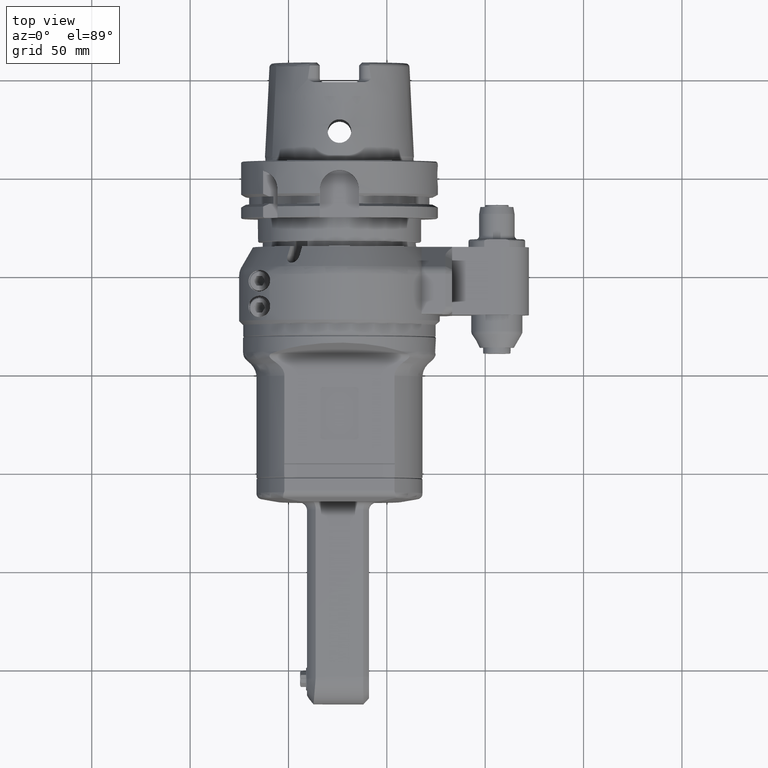
[diagram: clean part render]
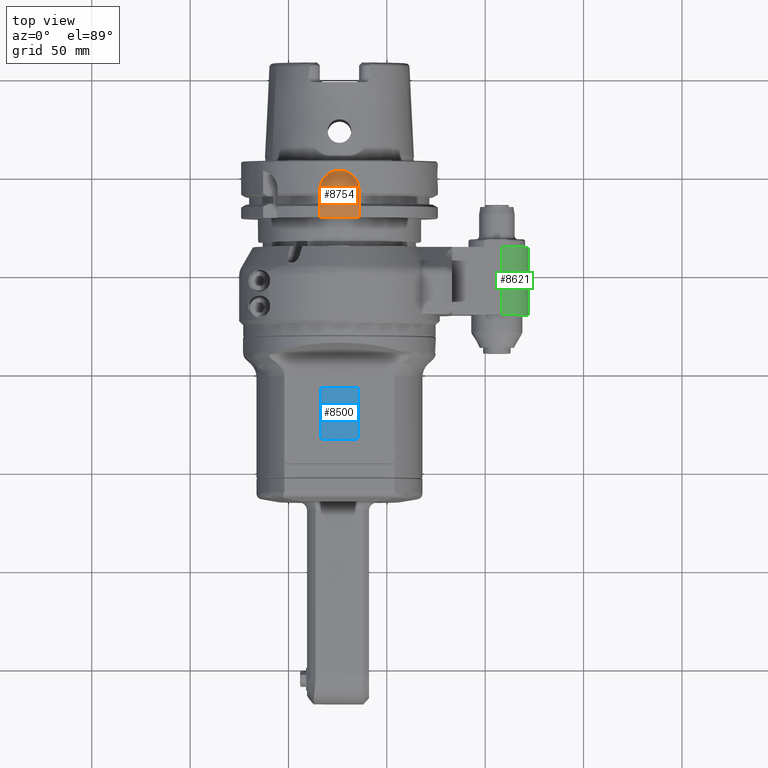
[diagram: same view with three faces highlighted in distinct colors, each labeled with its STEP entity id]
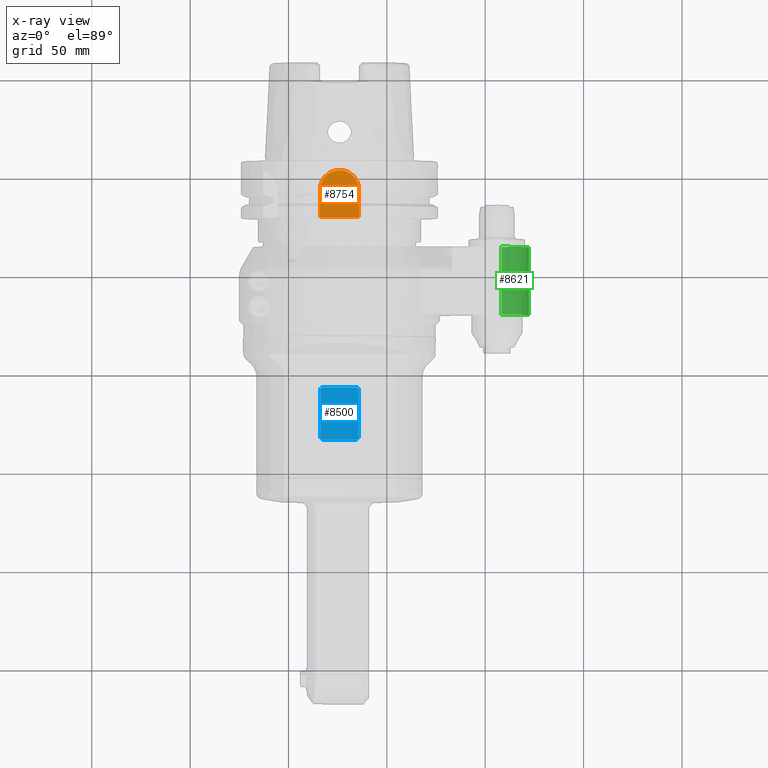
[diagram: x-ray of the same camera — body ghosted, the three highlighted faces saturated]
A machine part, top view with three faces highlighted in distinct colors.
The next image is the same camera in x-ray (body ghosted, the three faces saturated) — at least one of them is partly hidden behind the body in this view.
Their STEP definitions:

[orange] entity #8754 — the highlighted planar face has unit normal (0, 0, -1).
#508=PLANE('',#9613);
#952=FACE_OUTER_BOUND('',#1513,.T.);
#1513=EDGE_LOOP('',(#7532,#7533,#7534,#7535));
#2306=LINE('',#56442,#2937);
#2308=LINE('',#56449,#2939);
#2309=LINE('',#56450,#2940);
#2937=VECTOR('',#11660,14.);
#2939=VECTOR('',#11668,14.);
#2940=VECTOR('',#11669,20.);
#3379=CIRCLE('',#9612,10.);
#4117=VERTEX_POINT('',#56423);
#4123=VERTEX_POINT('',#56440);
#4124=VERTEX_POINT('',#56444);
#4125=VERTEX_POINT('',#56448);
#5299=EDGE_CURVE('',#4117,#4123,#2306,.T.);
#5300=EDGE_CURVE('',#4124,#4117,#3379,.T.);
#5302=EDGE_CURVE('',#4125,#4124,#2308,.T.);
#5303=EDGE_CURVE('',#4123,#4125,#2309,.T.);
#7532=ORIENTED_EDGE('',*,*,#5302,.T.);
#7533=ORIENTED_EDGE('',*,*,#5300,.T.);
#7534=ORIENTED_EDGE('',*,*,#5299,.T.);
#7535=ORIENTED_EDGE('',*,*,#5303,.T.);
#8754=ADVANCED_FACE('',(#952),#508,.F.);
#9612=AXIS2_PLACEMENT_3D('',#56445,#11663,#11664);
#9613=AXIS2_PLACEMENT_3D('',#56447,#11666,#11667);
#11660=DIRECTION('',(0.,-1.,-2.9996548615444E-25));
#11663=DIRECTION('center_axis',(0.,0.,1.));
#11664=DIRECTION('ref_axis',(0.,1.,0.));
#11666=DIRECTION('center_axis',(0.,0.,-1.));
#11667=DIRECTION('ref_axis',(0.,-1.,0.));
#11668=DIRECTION('',(0.,1.,2.9996548615444E-25));
#11669=DIRECTION('',(1.,0.,0.));
#56423=CARTESIAN_POINT('',(-10.0000000000041,67.9999999999976,44.0000000000042));
#56440=CARTESIAN_POINT('',(-10.0000000000041,53.9999999999956,43.9999999999992));
#56442=CARTESIAN_POINT('',(-10.0000000000041,67.9999999999976,44.0000000000042));
#56444=CARTESIAN_POINT('',(9.99999999999594,67.9999999999976,44.0000000000042));
#56445=CARTESIAN_POINT('Origin',(-4.060069640028E-12,67.9999999999976,44.0000000000042));
#56447=CARTESIAN_POINT('Origin',(-4.060069640028E-12,33.0999999999956,43.9999999999966));
#56448=CARTESIAN_POINT('',(9.99999999999594,53.9999999999956,43.9999999999992));
#56449=CARTESIAN_POINT('',(9.99999999999594,53.9999999999956,43.9999999999992));
#56450=CARTESIAN_POINT('',(-10.0000000000041,53.9999999999956,43.9999999999992));

[blue] entity #8500 — the highlighted planar face has unit normal (0, -0, 1).
#378=PLANE('',#9174);
#698=FACE_OUTER_BOUND('',#1223,.T.);
#1223=EDGE_LOOP('',(#6260,#6261,#6262,#6263,#6264,#6265,#6266,#6267));
#1977=LINE('',#13535,#2608);
#1980=LINE('',#13546,#2611);
#1981=LINE('',#13550,#2612);
#1982=LINE('',#13552,#2613);
#2608=VECTOR('',#10453,16.5);
#2611=VECTOR('',#10464,16.5);
#2612=VECTOR('',#10467,23.5);
#2613=VECTOR('',#10470,23.5);
#3189=CIRCLE('',#9173,1.5);
#3190=CIRCLE('',#9175,1.5);
#3191=CIRCLE('',#9176,1.5);
#3192=CIRCLE('',#9177,1.5);
#3700=VERTEX_POINT('',#13532);
#3701=VERTEX_POINT('',#13534);
#3702=VERTEX_POINT('',#13538);
#3703=VERTEX_POINT('',#13542);
#3704=VERTEX_POINT('',#13543);
#3705=VERTEX_POINT('',#13545);
#3706=VERTEX_POINT('',#13547);
#3707=VERTEX_POINT('',#13549);
#4656=EDGE_CURVE('',#3701,#3700,#1977,.T.);
#4658=EDGE_CURVE('',#3700,#3702,#3189,.T.);
#4660=EDGE_CURVE('',#3703,#3704,#3190,.T.);
#4661=EDGE_CURVE('',#3704,#3705,#1980,.T.);
#4662=EDGE_CURVE('',#3705,#3706,#3191,.T.);
#4663=EDGE_CURVE('',#3706,#3707,#1981,.T.);
#4664=EDGE_CURVE('',#3707,#3701,#3192,.T.);
#4665=EDGE_CURVE('',#3702,#3703,#1982,.T.);
#6260=ORIENTED_EDGE('',*,*,#4660,.T.);
#6261=ORIENTED_EDGE('',*,*,#4661,.T.);
#6262=ORIENTED_EDGE('',*,*,#4662,.T.);
#6263=ORIENTED_EDGE('',*,*,#4663,.T.);
#6264=ORIENTED_EDGE('',*,*,#4664,.T.);
#6265=ORIENTED_EDGE('',*,*,#4656,.T.);
#6266=ORIENTED_EDGE('',*,*,#4658,.T.);
#6267=ORIENTED_EDGE('',*,*,#4665,.T.);
#8500=ADVANCED_FACE('',(#698),#378,.T.);
#9173=AXIS2_PLACEMENT_3D('',#13539,#10457,#10458);
#9174=AXIS2_PLACEMENT_3D('',#13541,#10460,#10461);
#9175=AXIS2_PLACEMENT_3D('',#13544,#10462,#10463);
#9176=AXIS2_PLACEMENT_3D('',#13548,#10465,#10466);
#9177=AXIS2_PLACEMENT_3D('',#13551,#10468,#10469);
#10453=DIRECTION('',(0.,1.,0.));
#10457=DIRECTION('center_axis',(0.,0.,1.));
#10458=DIRECTION('ref_axis',(1.,0.,0.));
#10460=DIRECTION('center_axis',(0.,0.,1.));
#10461=DIRECTION('ref_axis',(1.,0.,0.));
#10462=DIRECTION('center_axis',(0.,0.,1.));
#10463=DIRECTION('ref_axis',(0.,1.,0.));
#10464=DIRECTION('',(0.,-1.,0.));
#10465=DIRECTION('center_axis',(0.,0.,1.));
#10466=DIRECTION('ref_axis',(-1.,-1.42108547152E-14,0.));
#10467=DIRECTION('',(1.,0.,0.));
#10468=DIRECTION('center_axis',(0.,0.,1.));
#10469=DIRECTION('ref_axis',(0.,-1.,0.));
#10470=DIRECTION('',(-1.,0.,0.));
#13532=CARTESIAN_POINT('',(49.7,8.25,31.8));
#13534=CARTESIAN_POINT('',(49.7,-8.25,31.8));
#13535=CARTESIAN_POINT('',(49.7,-8.25,31.8));
#13538=CARTESIAN_POINT('',(48.2,9.75,31.8));
#13539=CARTESIAN_POINT('Origin',(48.2,8.25,31.8));
#13541=CARTESIAN_POINT('Origin',(0.,0.,31.8));
#13542=CARTESIAN_POINT('',(24.7,9.75,31.8));
#13543=CARTESIAN_POINT('',(23.2,8.25,31.8));
#13544=CARTESIAN_POINT('Origin',(24.7,8.25,31.8));
#13545=CARTESIAN_POINT('',(23.2,-8.25,31.8));
#13546=CARTESIAN_POINT('',(23.2,8.25,31.8));
#13547=CARTESIAN_POINT('',(24.7,-9.75,31.8));
#13548=CARTESIAN_POINT('Origin',(24.7,-8.25,31.8));
#13549=CARTESIAN_POINT('',(48.2,-9.75,31.8));
#13550=CARTESIAN_POINT('',(24.7,-9.75,31.8));
#13551=CARTESIAN_POINT('Origin',(48.2,-8.25,31.8));
#13552=CARTESIAN_POINT('',(48.2,9.75,31.8));

[green] entity #8621 — the highlighted cylindrical surface (edge-blend (fillet) strip) has radius 14 mm, axis along (0, 1, 0).
#819=FACE_OUTER_BOUND('',#1362,.T.);
#1362=EDGE_LOOP('',(#6911,#6912,#6913,#6914));
#2170=LINE('',#14516,#2801);
#2171=LINE('',#14518,#2802);
#2801=VECTOR('',#11094,34.5);
#2802=VECTOR('',#11097,34.5);
#3272=CIRCLE('',#9364,14.);
#3281=CIRCLE('',#9382,14.);
#3890=VERTEX_POINT('',#14396);
#3891=VERTEX_POINT('',#14398);
#3916=VERTEX_POINT('',#14476);
#3917=VERTEX_POINT('',#14478);
#4939=EDGE_CURVE('',#3890,#3891,#3272,.T.);
#4976=EDGE_CURVE('',#3916,#3917,#3281,.T.);
#4996=EDGE_CURVE('',#3916,#3891,#2170,.T.);
#4997=EDGE_CURVE('',#3890,#3917,#2171,.T.);
#6911=ORIENTED_EDGE('',*,*,#4997,.T.);
#6912=ORIENTED_EDGE('',*,*,#4976,.F.);
#6913=ORIENTED_EDGE('',*,*,#4996,.T.);
#6914=ORIENTED_EDGE('',*,*,#4939,.F.);
#8310=CYLINDRICAL_SURFACE('',#9396,14.);
#8621=ADVANCED_FACE('',(#819),#8310,.T.);
#9364=AXIS2_PLACEMENT_3D('',#14399,#10995,#10996);
#9382=AXIS2_PLACEMENT_3D('',#14479,#11055,#11056);
#9396=AXIS2_PLACEMENT_3D('',#14517,#11095,#11096);
#10995=DIRECTION('center_axis',(0.,-1.,0.));
#10996=DIRECTION('ref_axis',(1.,0.,0.));
#11055=DIRECTION('center_axis',(0.,1.,0.));
#11056=DIRECTION('ref_axis',(0.,0.,1.));
#11094=DIRECTION('',(0.,-1.,0.));
#11095=DIRECTION('center_axis',(0.,1.,0.));
#11096=DIRECTION('ref_axis',(-1.,0.,0.));
#11097=DIRECTION('',(0.,1.,0.));
#14396=CARTESIAN_POINT('',(96.25,5.,1.));
#14398=CARTESIAN_POINT('',(82.25,5.,15.));
#14399=CARTESIAN_POINT('Origin',(82.25,5.,1.));
#14476=CARTESIAN_POINT('',(82.25,39.5,15.));
#14478=CARTESIAN_POINT('',(96.25,39.5,1.));
#14479=CARTESIAN_POINT('Origin',(82.25,39.5,1.));
#14516=CARTESIAN_POINT('',(82.25,39.5,15.));
#14517=CARTESIAN_POINT('Origin',(82.25,31.,1.));
#14518=CARTESIAN_POINT('',(96.25,5.,1.));